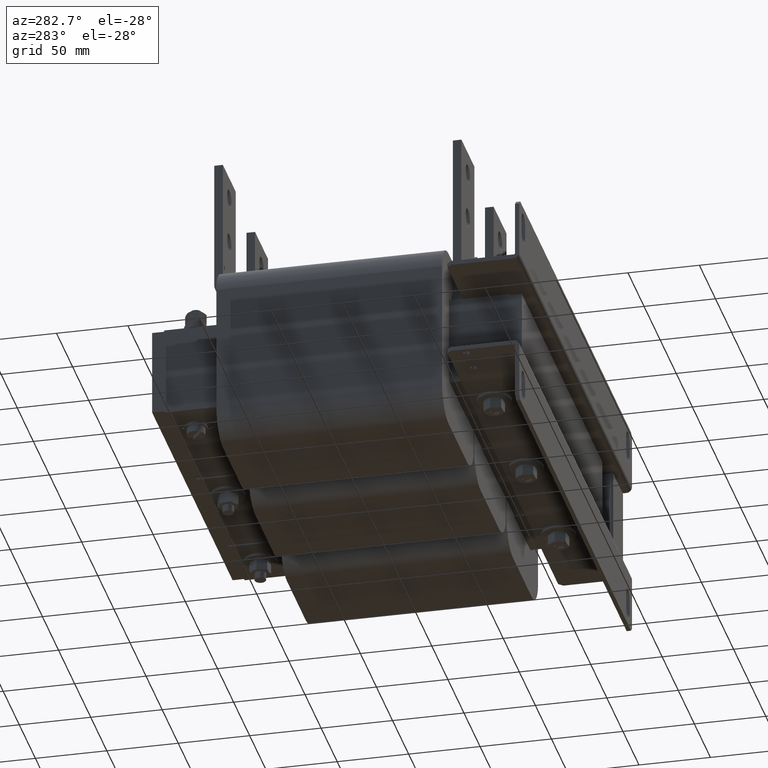
[diagram: clean part render]
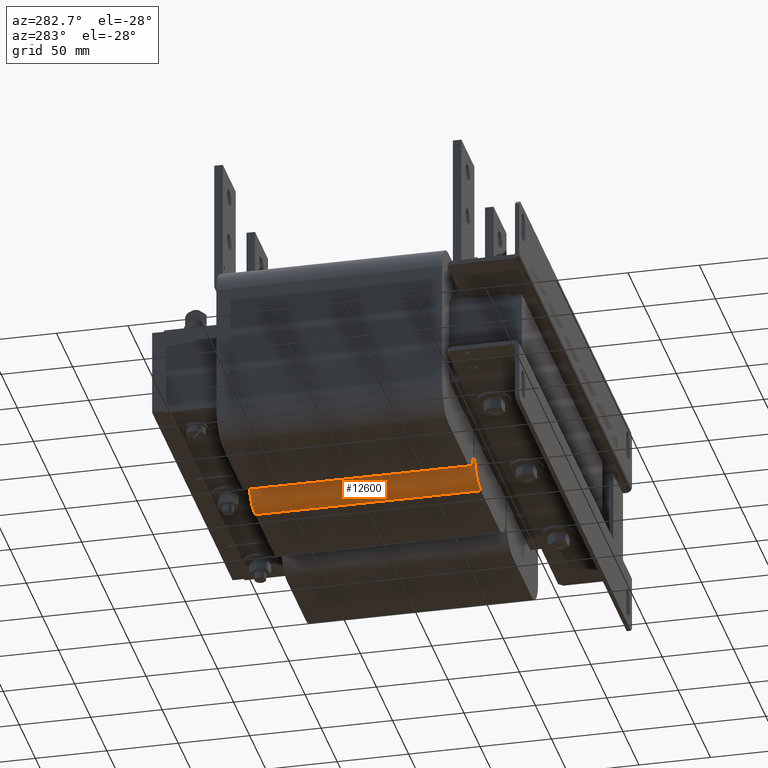
[diagram: same view with one face highlighted and labeled with its STEP entity id]
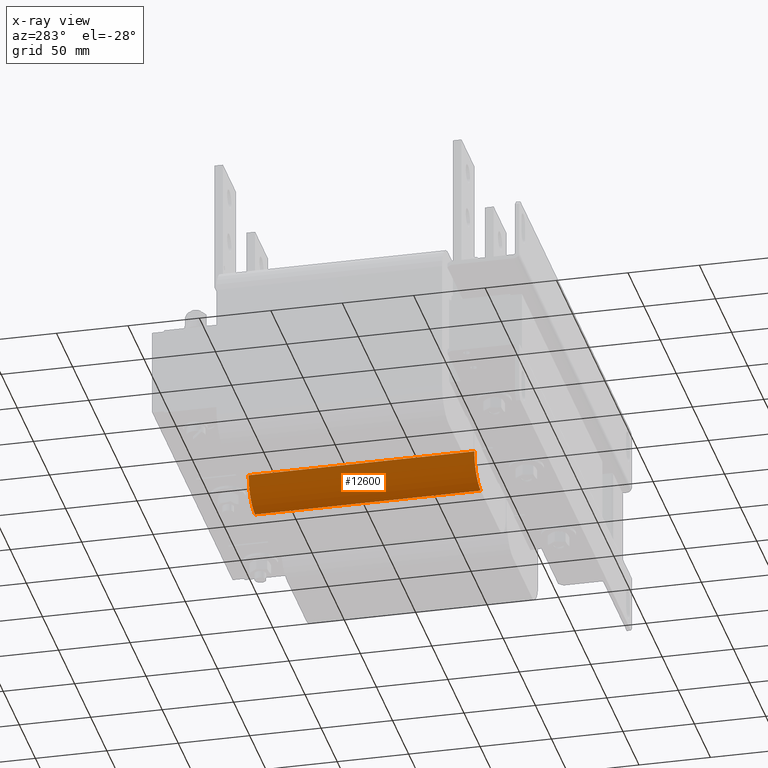
[diagram: x-ray of the same camera — body ghosted, the highlighted face saturated]
A machine part, auxiliary view. The second image highlights one B-rep face of the part: STEP entity #12600.
The next image is the same camera in x-ray: the body ghosted, the highlighted face saturated — about 0% of this face is hidden behind the body in this view.
In plain terms, the highlighted cylindrical surface (edge-blend (fillet) strip) has radius 20 mm, axis along (0, -1, 0).
Its self-contained STEP definition (entity closure, byte-faithful):
#1488 = CARTESIAN_POINT ( 'NONE',  ( -29.00000000000000400, 0.0000000000000000000, -45.75000000000001400 ) ) ;
#2387 = EDGE_CURVE ( 'NONE', #11637, #18272, #15247, .T. ) ;
#3166 = ORIENTED_EDGE ( 'NONE', *, *, #16398, .F. ) ;
#3636 = DIRECTION ( 'NONE',  ( 0.0000000000000000000, 0.0000000000000000000, -1.000000000000000000 ) ) ;
#3848 = CARTESIAN_POINT ( 'NONE',  ( -49.00000000000000000, 158.0000000000000000, -45.75000000000001400 ) ) ;
#4410 = EDGE_CURVE ( 'NONE', #8795, #11845, #15897, .T. ) ;
#4638 = VECTOR ( 'NONE', #20697, 1000.000000000000000 ) ;
#5044 = CARTESIAN_POINT ( 'NONE',  ( -49.00000000000000000, 0.0000000000000000000, -45.75000000000001400 ) ) ;
#5092 = ORIENTED_EDGE ( 'NONE', *, *, #4410, .F. ) ;
#6000 = CARTESIAN_POINT ( 'NONE',  ( -29.00000000000000400, 158.0000000000000000, -45.75000000000001400 ) ) ;
#6468 = CIRCLE ( 'NONE', #21982, 19.99999999999998900 ) ;
#7145 = DIRECTION ( 'NONE',  ( 0.0000000000000000000, 0.0000000000000000000, -1.000000000000000000 ) ) ;
#7725 = CARTESIAN_POINT ( 'NONE',  ( -29.00000000000000400, 0.0000000000000000000, -65.75000000000000000 ) ) ;
#8121 = DIRECTION ( 'NONE',  ( 0.0000000000000000000, 0.0000000000000000000, -1.000000000000000000 ) ) ;
#8795 = VERTEX_POINT ( 'NONE', #7725 ) ;
#10014 = CARTESIAN_POINT ( 'NONE',  ( -29.00000000000000400, 158.0000000000000000, -65.75000000000000000 ) ) ;
#10044 = VECTOR ( 'NONE', #24751, 1000.000000000000000 ) ;
#10598 = AXIS2_PLACEMENT_3D ( 'NONE', #21909, #19804, #7145 ) ;
#10648 = CYLINDRICAL_SURFACE ( 'NONE', #10598, 19.99999999999998900 ) ;
#11637 = VERTEX_POINT ( 'NONE', #13284 ) ;
#11713 = CARTESIAN_POINT ( 'NONE',  ( -29.00000000000000400, 158.0000000000000000, -65.75000000000000000 ) ) ;
#11845 = VERTEX_POINT ( 'NONE', #11713 ) ;
#12600 = ADVANCED_FACE ( 'NONE', ( #21253 ), #10648, .T. ) ;
#13284 = CARTESIAN_POINT ( 'NONE',  ( -49.00000000000000000, 158.0000000000000000, -45.75000000000001400 ) ) ;
#15247 = LINE ( 'NONE', #3848, #4638 ) ;
#15897 = LINE ( 'NONE', #10014, #10044 ) ;
#16280 = DIRECTION ( 'NONE',  ( 0.0000000000000000000, -1.000000000000000000, 0.0000000000000000000 ) ) ;
#16398 = EDGE_CURVE ( 'NONE', #11845, #11637, #18523, .T. ) ;
#18272 = VERTEX_POINT ( 'NONE', #5044 ) ;
#18523 = CIRCLE ( 'NONE', #26374, 19.99999999999998900 ) ;
#19804 = DIRECTION ( 'NONE',  ( -0.0000000000000000000, -1.000000000000000000, 0.0000000000000000000 ) ) ;
#20697 = DIRECTION ( 'NONE',  ( -0.0000000000000000000, -1.000000000000000000, 0.0000000000000000000 ) ) ;
#20734 = DIRECTION ( 'NONE',  ( -0.0000000000000000000, 1.000000000000000000, -0.0000000000000000000 ) ) ;
#21253 = FACE_OUTER_BOUND ( 'NONE', #25662, .T. ) ;
#21883 = ORIENTED_EDGE ( 'NONE', *, *, #23152, .F. ) ;
#21909 = CARTESIAN_POINT ( 'NONE',  ( -29.00000000000000400, 158.0000000000000000, -45.75000000000001400 ) ) ;
#21982 = AXIS2_PLACEMENT_3D ( 'NONE', #1488, #16280, #3636 ) ;
#23152 = EDGE_CURVE ( 'NONE', #18272, #8795, #6468, .T. ) ;
#24751 = DIRECTION ( 'NONE',  ( -0.0000000000000000000, 1.000000000000000000, -0.0000000000000000000 ) ) ;
#25255 = ORIENTED_EDGE ( 'NONE', *, *, #2387, .F. ) ;
#25662 = EDGE_LOOP ( 'NONE', ( #3166, #5092, #21883, #25255 ) ) ;
#26374 = AXIS2_PLACEMENT_3D ( 'NONE', #6000, #20734, #8121 ) ;